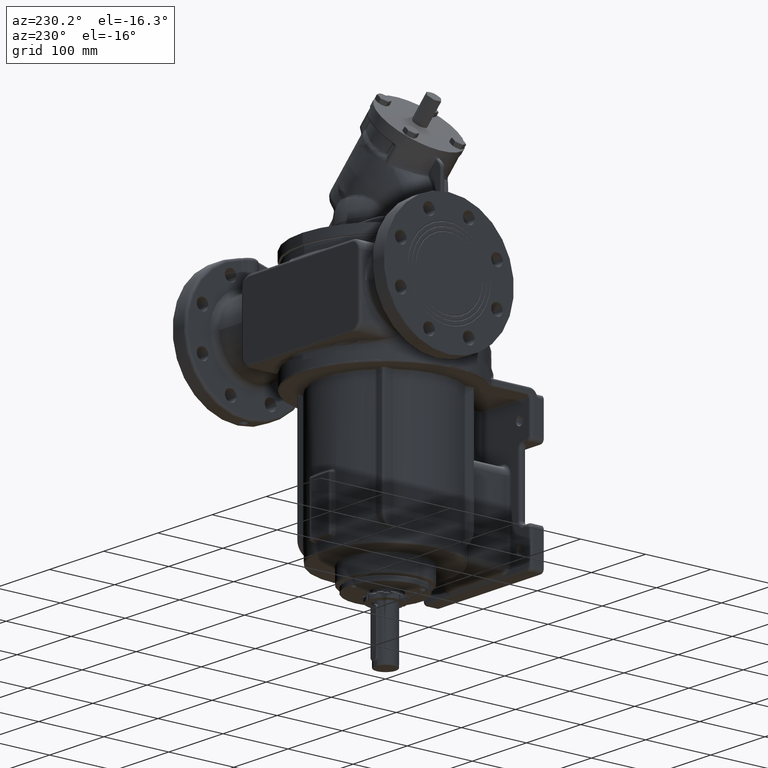
[diagram: clean part render]
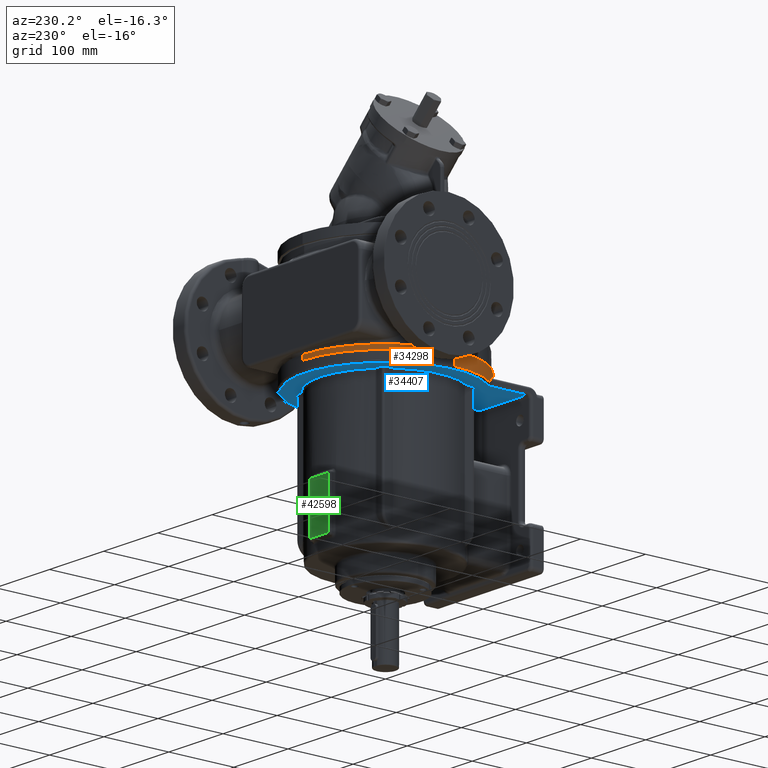
[diagram: same view with three faces highlighted in distinct colors, each labeled with its STEP entity id]
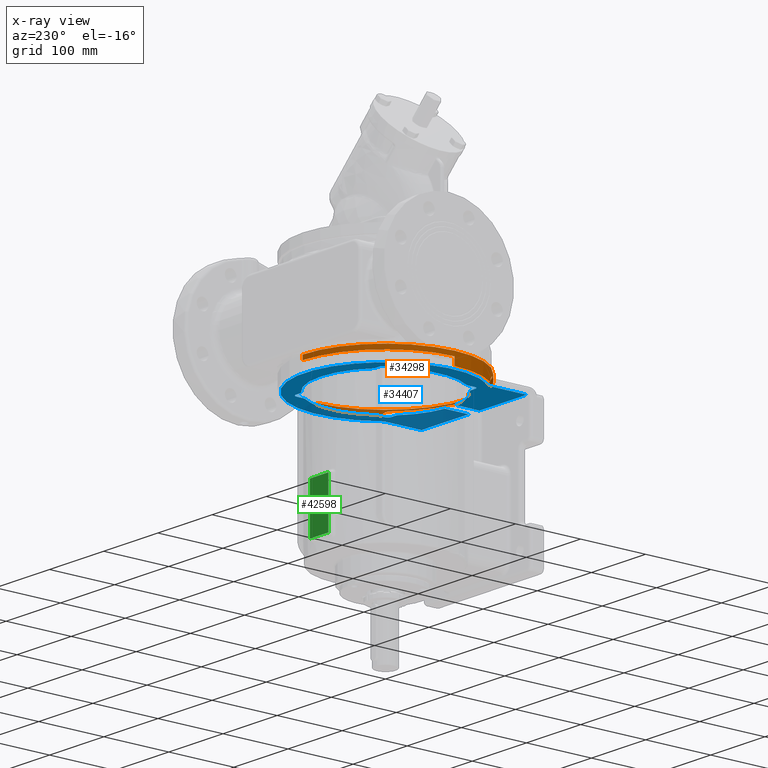
[diagram: x-ray of the same camera — body ghosted, the three highlighted faces saturated]
A machine part, auxiliary view with three faces highlighted in distinct colors.
The next image is the same camera in x-ray (body ghosted, the three faces saturated) — at least one of them is partly hidden behind the body in this view.
Their STEP definitions:

[orange] entity #34298 — the highlighted cylindrical surface (partial cylindrical patch) has radius 127.5 mm, axis along (0, 0, 1).
#7024=CARTESIAN_POINT('',(0.E0,0.E0,8.000000000001E0));
#7025=DIRECTION('',(0.E0,0.E0,1.E0));
#7026=DIRECTION('',(0.E0,1.E0,0.E0));
#7027=AXIS2_PLACEMENT_3D('',#7024,#7025,#7026);
#7029=CARTESIAN_POINT('',(0.E0,0.E0,1.E0));
#7030=DIRECTION('',(0.E0,0.E0,1.E0));
#7031=DIRECTION('',(0.E0,-1.E0,0.E0));
#7032=AXIS2_PLACEMENT_3D('',#7029,#7030,#7031);
#7034=CARTESIAN_POINT('',(0.E0,0.E0,-1.1E1));
#7035=DIRECTION('',(0.E0,0.E0,-1.E0));
#7036=DIRECTION('',(1.E0,0.E0,0.E0));
#7037=AXIS2_PLACEMENT_3D('',#7034,#7035,#7036);
#7039=DIRECTION('',(-6.084626136271E-10,-8.112870375498E-10,1.E0));
#7040=VECTOR('',#7039,4.E0);
#7041=CARTESIAN_POINT('',(1.020000000024E2,-7.649999999675E1,-1.1E1));
#7042=LINE('',#7041,#7040);
#7043=CARTESIAN_POINT('',(1.02E2,-7.65E1,-7.E0));
#7044=CARTESIAN_POINT('',(1.018345745973E2,-7.672056609288E1,
-6.731806660194E0));
#7045=CARTESIAN_POINT('',(1.015162158614E2,-7.714208363280E1,
-6.218281789405E0));
#7046=CARTESIAN_POINT('',(1.010716324088E2,-7.772347736784E1,
-5.522932156862E0));
#7047=CARTESIAN_POINT('',(1.006614189119E2,-7.825384947027E1,
-4.910509691007E0));
#7048=CARTESIAN_POINT('',(1.002860129610E2,-7.873422110484E1,
-4.381025422420E0));
#7049=CARTESIAN_POINT('',(9.994385903463E1,-7.916796889540E1,
-3.927741245680E0));
#7050=CARTESIAN_POINT('',(9.962990181051E1,-7.956262190852E1,
-3.538422422986E0));
#7051=CARTESIAN_POINT('',(9.933744200089E1,-7.992740766391E1,
-3.199652398343E0));
#7052=CARTESIAN_POINT('',(9.906052090810E1,-8.027033266040E1,
-2.900660221844E0));
#7053=CARTESIAN_POINT('',(9.887876925735E1,-8.049384442240E1,
-2.718526947514E0));
#7054=CARTESIAN_POINT('',(9.878934217162E1,-8.060344827176E1,
-2.632315038099E0));
#7056=CARTESIAN_POINT('',(9.878934217162E1,-8.060344827176E1,
-2.632315038099E0));
#7057=CARTESIAN_POINT('',(9.872598002772E1,-8.068110893083E1,
-2.571243436391E0));
#7058=CARTESIAN_POINT('',(9.859497686810E1,-8.084129287736E1,
-2.450305281733E0));
#7059=CARTESIAN_POINT('',(9.838463277204E1,-8.109718163085E1,
-2.273334865420E0));
#7060=CARTESIAN_POINT('',(9.816126084607E1,-8.136743838605E1,
-2.102950596891E0));
#7061=CARTESIAN_POINT('',(9.792541072510E1,-8.165115711206E1,
-1.940511418197E0));
#7062=CARTESIAN_POINT('',(9.767786022629E1,-8.194716188643E1,
-1.787245056191E0));
#7063=CARTESIAN_POINT('',(9.741925652983E1,-8.225444799142E1,
-1.644686564391E0));
#7064=CARTESIAN_POINT('',(9.715042178098E1,-8.257181759643E1,
-1.514052456115E0));
#7065=CARTESIAN_POINT('',(9.687228027144E1,-8.289797472594E1,
-1.396202028190E0));
#7066=CARTESIAN_POINT('',(9.658594074040E1,-8.323143547217E1,
-1.292186763664E0));
#7067=CARTESIAN_POINT('',(9.629263905765E1,-8.357060368716E1,
-1.203018408402E0));
#7068=CARTESIAN_POINT('',(9.599369143884E1,-8.391383129706E1,
-1.129351647198E0));
#7069=CARTESIAN_POINT('',(9.569046675250E1,-8.425945341664E1,
-1.071582121625E0));
#7070=CARTESIAN_POINT('',(9.538444268325E1,-8.460572972302E1,
-1.030205082494E0));
#7071=CARTESIAN_POINT('',(9.507695067956E1,-8.495112894917E1,
-1.005448931150E0));
#7072=CARTESIAN_POINT('',(9.487239627E1,-8.517923409664E1,-1.000002965745E0));
#7073=CARTESIAN_POINT('',(9.477011494366E1,-8.529287961821E1,
-1.000000000002E0));
#7075=CARTESIAN_POINT('',(0.E0,0.E0,-9.999999999999E-1));
#7076=DIRECTION('',(0.E0,0.E0,-1.E0));
#7077=DIRECTION('',(7.432950191571E-1,-6.689637617213E-1,0.E0));
#7078=AXIS2_PLACEMENT_3D('',#7075,#7076,#7077);
#7080=CARTESIAN_POINT('',(-9.477011494345E1,-8.529287961844E1,
-1.000000000002E0));
#7081=CARTESIAN_POINT('',(-9.487238070541E1,-8.517925090908E1,
-1.000003031781E0));
#7082=CARTESIAN_POINT('',(-9.507673036850E1,-8.495137398203E1,
-1.005455188941E0));
#7083=CARTESIAN_POINT('',(-9.538328383182E1,-8.460703300808E1,
-1.030121951447E0));
#7084=CARTESIAN_POINT('',(-9.568808823594E1,-8.426215098945E1,
-1.071248060553E0));
#7085=CARTESIAN_POINT('',(-9.599003650864E1,-8.391800878310E1,
-1.128549629257E0));
#7086=CARTESIAN_POINT('',(-9.628790102262E1,-8.357606011313E1,
-1.201742308978E0));
#7087=CARTESIAN_POINT('',(-9.658053092510E1,-8.323771180746E1,
-1.290469195871E0));
#7088=CARTESIAN_POINT('',(-9.686687042605E1,-8.290429711707E1,
-1.394083332888E0));
#7089=CARTESIAN_POINT('',(-9.714572893118E1,-8.257734111091E1,
-1.511828395056E0));
#7090=CARTESIAN_POINT('',(-9.741557755208E1,-8.225880770023E1,
-1.642809079293E0));
#7091=CARTESIAN_POINT('',(-9.767511664976E1,-8.195043379122E1,
-1.785753256984E0));
#7092=CARTESIAN_POINT('',(-9.792309858695E1,-8.165393035981E1,
-1.938842086258E0));
#7093=CARTESIAN_POINT('',(-9.815893431671E1,-8.137024478121E1,
-2.101001865714E0));
#7094=CARTESIAN_POINT('',(-9.838235896652E1,-8.109994081143E1,
-2.271343811262E0));
#7095=CARTESIAN_POINT('',(-9.859323634845E1,-8.084341656276E1,
-2.448714109522E0));
#7096=CARTESIAN_POINT('',(-9.872531031776E1,-8.068193229851E1,
-2.570605767824E0));
#7097=CARTESIAN_POINT('',(-9.878934288076E1,-8.060344740262E1,
-2.632316047590E0));
#7099=CARTESIAN_POINT('',(-9.878934288076E1,-8.060344740262E1,
-2.632316047590E0));
#7100=CARTESIAN_POINT('',(-9.887907341456E1,-8.049347234898E1,
-2.718817844951E0));
#7101=CARTESIAN_POINT('',(-9.906159344524E1,-8.026901303475E1,
-2.901709231404E0));
#7102=CARTESIAN_POINT('',(-9.934023939728E1,-7.992393626016E1,
-3.202709985745E0));
#7103=CARTESIAN_POINT('',(-9.963447362007E1,-7.955690291615E1,
-3.543886221359E0));
#7104=CARTESIAN_POINT('',(-9.995018319969E1,-7.915998901997E1,
-3.935744966837E0));
#7105=CARTESIAN_POINT('',(-1.002932482655E2,-7.872500893792E1,
-4.390925456379E0));
#7106=CARTESIAN_POINT('',(-1.006700145983E2,-7.824279697977E1,
-4.922941460508E0));
#7107=CARTESIAN_POINT('',(-1.010795249390E2,-7.771319444078E1,
-5.535100483951E0));
#7108=CARTESIAN_POINT('',(-1.015205008586E2,-7.713644868798E1,
-6.225157102948E0));
#7109=CARTESIAN_POINT('',(-1.018361559831E2,-7.671840201277E1,
-6.734274788332E0));
#7110=CARTESIAN_POINT('',(-1.020000269172E2,-7.649996408964E1,
-6.999947423987E0));
#7112=DIRECTION('',(6.728577055917E-6,-8.976621248860E-6,-9.999999999371E-1));
#7113=VECTOR('',#7112,4.000052576265E0);
#7114=CARTESIAN_POINT('',(-1.020000269172E2,-7.649996408964E1,
-6.999947423987E0));
#7115=LINE('',#7114,#7113);
#7116=CARTESIAN_POINT('',(0.E0,0.E0,-1.1E1));
#7117=DIRECTION('',(0.E0,0.E0,-1.E0));
#7118=DIRECTION('',(-8.E-1,-6.E-1,0.E0));
#7119=AXIS2_PLACEMENT_3D('',#7116,#7117,#7118);
#7121=DIRECTION('',(0.E0,4.257314524292E-13,-1.E0));
#7122=VECTOR('',#7121,1.2E1);
#7123=CARTESIAN_POINT('',(1.275E2,2.342138003369E-14,1.E0));
#7124=LINE('',#7123,#7122);
#7125=DIRECTION('',(0.E0,0.E0,-1.E0));
#7126=VECTOR('',#7125,7.E0);
#7127=CARTESIAN_POINT('',(0.E0,-1.275E2,8.E0));
#7128=LINE('',#7127,#7126);
#7134=DIRECTION('',(0.E0,0.E0,-1.E0));
#7135=VECTOR('',#7134,7.E0);
#7136=CARTESIAN_POINT('',(0.E0,1.275E2,8.E0));
#7137=LINE('',#7136,#7135);
#7138=CARTESIAN_POINT('',(0.E0,0.E0,1.E0));
#7139=DIRECTION('',(0.E0,0.E0,1.E0));
#7140=DIRECTION('',(0.E0,1.E0,0.E0));
#7141=AXIS2_PLACEMENT_3D('',#7138,#7139,#7140);
#7143=DIRECTION('',(0.E0,-2.716193617701E-13,-1.E0));
#7144=VECTOR('',#7143,1.2E1);
#7145=CARTESIAN_POINT('',(-1.275E2,-1.561423668913E-14,1.E0));
#7146=LINE('',#7145,#7144);
#9080=CARTESIAN_POINT('',(1.02E2,-7.65E1,-7.E0));
#15477=CARTESIAN_POINT('',(-1.02E2,-7.65E1,-1.1E1));
#15478=CARTESIAN_POINT('',(-1.275E2,-3.699670294698E-14,-1.1E1));
#15479=VERTEX_POINT('',#15477);
#15480=VERTEX_POINT('',#15478);
#15481=CARTESIAN_POINT('',(1.275E2,2.975892721928E-14,-1.1E1));
#15482=VERTEX_POINT('',#15481);
#15483=CARTESIAN_POINT('',(1.02E2,-7.65E1,-1.1E1));
#15484=VERTEX_POINT('',#15483);
#15709=VERTEX_POINT('',#7099);
#15710=VERTEX_POINT('',#7110);
#15712=VERTEX_POINT('',#7080);
#15714=CARTESIAN_POINT('',(9.477011494253E1,-8.529287961946E1,
-9.999999999999E-1));
#15715=VERTEX_POINT('',#15714);
#15718=VERTEX_POINT('',#7056);
#15720=VERTEX_POINT('',#9080);
#16034=CARTESIAN_POINT('',(2.123302534596E-14,1.275E2,8.000000000001E0));
#16035=CARTESIAN_POINT('',(-3.684725203508E-14,-1.275E2,8.000000000001E0));
#16036=VERTEX_POINT('',#16034);
#16037=VERTEX_POINT('',#16035);
#16038=CARTESIAN_POINT('',(-2.342136003369E-14,1.275E2,1.E0));
#16039=CARTESIAN_POINT('',(-1.275E2,-1.561423668913E-14,1.E0));
#16040=VERTEX_POINT('',#16038);
#16041=VERTEX_POINT('',#16039);
#16042=CARTESIAN_POINT('',(0.E0,-1.275E2,1.E0));
#16043=CARTESIAN_POINT('',(1.275E2,2.831069712794E-14,1.E0));
#16044=VERTEX_POINT('',#16042);
#16045=VERTEX_POINT('',#16043);
#34260=CARTESIAN_POINT('',(0.E0,-3.280827774916E-14,-2.669E2));
#34261=DIRECTION('',(0.E0,0.E0,1.E0));
#34262=DIRECTION('',(1.E0,0.E0,0.E0));
#34263=AXIS2_PLACEMENT_3D('',#34260,#34261,#34262);
#34264=CYLINDRICAL_SURFACE('',#34263,1.275E2);
#34266=ORIENTED_EDGE('',*,*,#34265,.F.);
#34268=ORIENTED_EDGE('',*,*,#34267,.F.);
#34270=ORIENTED_EDGE('',*,*,#34269,.F.);
#34271=ORIENTED_EDGE('',*,*,#34248,.T.);
#34273=ORIENTED_EDGE('',*,*,#34272,.T.);
#34275=ORIENTED_EDGE('',*,*,#34274,.T.);
#34277=ORIENTED_EDGE('',*,*,#34276,.T.);
#34279=ORIENTED_EDGE('',*,*,#34278,.T.);
#34281=ORIENTED_EDGE('',*,*,#34280,.T.);
#34283=ORIENTED_EDGE('',*,*,#34282,.T.);
#34285=ORIENTED_EDGE('',*,*,#34284,.T.);
#34287=ORIENTED_EDGE('',*,*,#34286,.T.);
#34289=ORIENTED_EDGE('',*,*,#34288,.T.);
#34291=ORIENTED_EDGE('',*,*,#34290,.T.);
#34293=ORIENTED_EDGE('',*,*,#34292,.T.);
#34295=ORIENTED_EDGE('',*,*,#34294,.T.);
#34296=EDGE_LOOP('',(#34266,#34268,#34270,#34271,#34273,#34275,#34277,#34279,
#34281,#34283,#34285,#34287,#34289,#34291,#34293,#34295));
#34297=FACE_OUTER_BOUND('',#34296,.F.);
#34298=ADVANCED_FACE('',(#34297),#34264,.T.);
#7028=CIRCLE('',#7027,1.275E2);
#7033=CIRCLE('',#7032,1.275E2);
#7038=CIRCLE('',#7037,1.275E2);
#7055=B_SPLINE_CURVE_WITH_KNOTS('',3,(#7043,#7044,#7045,#7046,#7047,#7048,#7049,
#7050,#7051,#7052,#7053,#7054),.UNSPECIFIED.,.F.,.F.,(4,1,1,1,1,1,1,1,1,4),
(0.E0,1.111111111111E-1,2.222222222222E-1,3.333333333333E-1,4.444444444444E-1,
5.555555555556E-1,6.666666666667E-1,7.777777777778E-1,8.888888888889E-1,1.E0),
.UNSPECIFIED.);
#7074=B_SPLINE_CURVE_WITH_KNOTS('',3,(#7056,#7057,#7058,#7059,#7060,#7061,#7062,
#7063,#7064,#7065,#7066,#7067,#7068,#7069,#7070,#7071,#7072,#7073),
.UNSPECIFIED.,.F.,.F.,(4,1,1,1,1,1,1,1,1,1,1,1,1,1,1,4),(0.E0,6.666666666667E-2,
1.333333333333E-1,2.E-1,2.666666666667E-1,3.333333333333E-1,4.E-1,
4.666666666667E-1,5.333333333333E-1,6.E-1,6.666666666667E-1,7.333333333333E-1,
8.E-1,8.666666666667E-1,9.333333333333E-1,1.E0),.UNSPECIFIED.);
#7079=CIRCLE('',#7078,1.275E2);
#7098=B_SPLINE_CURVE_WITH_KNOTS('',3,(#7080,#7081,#7082,#7083,#7084,#7085,#7086,
#7087,#7088,#7089,#7090,#7091,#7092,#7093,#7094,#7095,#7096,#7097),
.UNSPECIFIED.,.F.,.F.,(4,1,1,1,1,1,1,1,1,1,1,1,1,1,1,4),(0.E0,6.666666666667E-2,
1.333333333333E-1,2.E-1,2.666666666667E-1,3.333333333333E-1,4.E-1,
4.666666666667E-1,5.333333333333E-1,6.E-1,6.666666666667E-1,7.333333333333E-1,
8.E-1,8.666666666667E-1,9.333333333333E-1,1.E0),.UNSPECIFIED.);
#7111=B_SPLINE_CURVE_WITH_KNOTS('',3,(#7099,#7100,#7101,#7102,#7103,#7104,#7105,
#7106,#7107,#7108,#7109,#7110),.UNSPECIFIED.,.F.,.F.,(4,1,1,1,1,1,1,1,1,4),
(0.E0,1.111111111111E-1,2.222222222222E-1,3.333333333333E-1,4.444444444444E-1,
5.555555555556E-1,6.666666666667E-1,7.777777777778E-1,8.888888888889E-1,1.E0),
.UNSPECIFIED.);
#7120=CIRCLE('',#7119,1.275E2);
#7142=CIRCLE('',#7141,1.275E2);
#34248=EDGE_CURVE('',#16036,#16037,#7028,.T.);
#34265=EDGE_CURVE('',#16041,#15480,#7146,.T.);
#34267=EDGE_CURVE('',#16040,#16041,#7142,.T.);
#34269=EDGE_CURVE('',#16036,#16040,#7137,.T.);
#34272=EDGE_CURVE('',#16037,#16044,#7128,.T.);
#34274=EDGE_CURVE('',#16044,#16045,#7033,.T.);
#34276=EDGE_CURVE('',#16045,#15482,#7124,.T.);
#34278=EDGE_CURVE('',#15482,#15484,#7038,.T.);
#34280=EDGE_CURVE('',#15484,#15720,#7042,.T.);
#34282=EDGE_CURVE('',#15720,#15718,#7055,.T.);
#34284=EDGE_CURVE('',#15718,#15715,#7074,.T.);
#34286=EDGE_CURVE('',#15715,#15712,#7079,.T.);
#34288=EDGE_CURVE('',#15712,#15709,#7098,.T.);
#34290=EDGE_CURVE('',#15709,#15710,#7111,.T.);
#34292=EDGE_CURVE('',#15710,#15479,#7115,.T.);
#34294=EDGE_CURVE('',#15479,#15480,#7120,.T.);

[blue] entity #34407 — the highlighted planar face has unit normal (0, 0, 1).
#7152=CARTESIAN_POINT('',(0.E0,0.E0,-1.4E1));
#7153=DIRECTION('',(0.E0,0.E0,-1.E0));
#7154=DIRECTION('',(-8.000045648583E-1,-5.999939134740E-1,0.E0));
#7155=AXIS2_PLACEMENT_3D('',#7152,#7153,#7154);
#7162=CARTESIAN_POINT('',(-8.4E1,-5.608029957124E1,-1.4E1));
#7163=DIRECTION('',(0.E0,0.E0,-1.E0));
#7164=DIRECTION('',(8.316831683168E-1,5.552504908044E-1,0.E0));
#7165=AXIS2_PLACEMENT_3D('',#7162,#7163,#7164);
#7167=CARTESIAN_POINT('',(0.E0,0.E0,-1.4E1));
#7168=DIRECTION('',(0.E0,0.E0,1.E0));
#7169=DIRECTION('',(-8.316831683168E-1,5.552504908044E-1,0.E0));
#7170=AXIS2_PLACEMENT_3D('',#7167,#7168,#7169);
#7172=CARTESIAN_POINT('',(-8.4E1,5.608029957124E1,-1.4E1));
#7173=DIRECTION('',(0.E0,0.E0,-1.E0));
#7174=DIRECTION('',(1.E0,0.E0,0.E0));
#7175=AXIS2_PLACEMENT_3D('',#7172,#7173,#7174);
#7177=DIRECTION('',(-6.384350397196E-11,-1.E0,0.E0));
#7178=VECTOR('',#7177,1.141970043857E1);
#7179=CARTESIAN_POINT('',(-8.299999999927E1,6.750000000981E1,-1.4E1));
#7180=LINE('',#7179,#7178);
#7181=CARTESIAN_POINT('',(-7.7E1,6.75E1,-1.4E1));
#7182=DIRECTION('',(0.E0,0.E0,1.E0));
#7183=DIRECTION('',(0.E0,1.E0,0.E0));
#7184=AXIS2_PLACEMENT_3D('',#7181,#7182,#7183);
#7186=DIRECTION('',(-1.E0,-2.553730027518E-10,0.E0));
#7187=VECTOR('',#7186,8.803592487393E0);
#7188=CARTESIAN_POINT('',(-6.819640753002E1,7.35E1,-1.4E1));
#7189=LINE('',#7188,#7187);
#7190=CARTESIAN_POINT('',(-6.819640753002E1,7.45E1,-1.4E1));
#7191=DIRECTION('',(0.E0,0.E0,-1.E0));
#7192=DIRECTION('',(6.752119557427E-1,-7.376237623762E-1,0.E0));
#7193=AXIS2_PLACEMENT_3D('',#7190,#7191,#7192);
#7195=CARTESIAN_POINT('',(0.E0,0.E0,-1.4E1));
#7196=DIRECTION('',(0.E0,0.E0,1.E0));
#7197=DIRECTION('',(6.752119557427E-1,7.376237623762E-1,0.E0));
#7198=AXIS2_PLACEMENT_3D('',#7195,#7196,#7197);
#7200=CARTESIAN_POINT('',(6.819640753002E1,7.45E1,-1.4E1));
#7201=DIRECTION('',(0.E0,0.E0,-1.E0));
#7202=DIRECTION('',(1.421085471520E-14,-1.E0,0.E0));
#7203=AXIS2_PLACEMENT_3D('',#7200,#7201,#7202);
#7205=DIRECTION('',(-1.E0,2.155681768786E-10,0.E0));
#7206=VECTOR('',#7205,8.803592485526E0);
#7207=CARTESIAN_POINT('',(7.700000001554E1,7.349999999810E1,-1.4E1));
#7208=LINE('',#7207,#7206);
#7209=CARTESIAN_POINT('',(7.7E1,6.75E1,-1.4E1));
#7210=DIRECTION('',(0.E0,0.E0,1.E0));
#7211=DIRECTION('',(1.E0,0.E0,0.E0));
#7212=AXIS2_PLACEMENT_3D('',#7209,#7210,#7211);
#7214=DIRECTION('',(-8.003584127642E-11,1.E0,0.E0));
#7215=VECTOR('',#7214,1.141970044029E1);
#7216=CARTESIAN_POINT('',(8.3E1,5.608029957124E1,-1.4E1));
#7217=LINE('',#7216,#7215);
#7218=CARTESIAN_POINT('',(8.4E1,5.608029957124E1,-1.4E1));
#7219=DIRECTION('',(0.E0,0.E0,-1.E0));
#7220=DIRECTION('',(-8.316831683168E-1,-5.552504908044E-1,0.E0));
#7221=AXIS2_PLACEMENT_3D('',#7218,#7219,#7220);
#7223=CARTESIAN_POINT('',(0.E0,0.E0,-1.4E1));
#7224=DIRECTION('',(0.E0,0.E0,1.E0));
#7225=DIRECTION('',(8.316831683168E-1,-5.552504908044E-1,0.E0));
#7226=AXIS2_PLACEMENT_3D('',#7223,#7224,#7225);
#7228=CARTESIAN_POINT('',(8.4E1,-5.608029957124E1,-1.4E1));
#7229=DIRECTION('',(0.E0,0.E0,-1.E0));
#7230=DIRECTION('',(-1.E0,0.E0,0.E0));
#7231=AXIS2_PLACEMENT_3D('',#7228,#7229,#7230);
#7233=DIRECTION('',(6.384350397196E-11,1.E0,0.E0));
#7234=VECTOR('',#7233,1.141970043857E1);
#7235=CARTESIAN_POINT('',(8.299999999927E1,-6.750000000981E1,-1.4E1));
#7236=LINE('',#7235,#7234);
#7237=CARTESIAN_POINT('',(7.7E1,-6.75E1,-1.4E1));
#7238=DIRECTION('',(0.E0,0.E0,1.E0));
#7239=DIRECTION('',(0.E0,-1.E0,0.E0));
#7240=AXIS2_PLACEMENT_3D('',#7237,#7238,#7239);
#7242=DIRECTION('',(1.E0,2.553746169627E-10,0.E0));
#7243=VECTOR('',#7242,8.803592487393E0);
#7244=CARTESIAN_POINT('',(6.819640753002E1,-7.35E1,-1.4E1));
#7245=LINE('',#7244,#7243);
#7246=CARTESIAN_POINT('',(6.819640753002E1,-7.45E1,-1.4E1));
#7247=DIRECTION('',(0.E0,0.E0,-1.E0));
#7248=DIRECTION('',(-6.752119557428E-1,7.376237623762E-1,0.E0));
#7249=AXIS2_PLACEMENT_3D('',#7246,#7247,#7248);
#7251=CARTESIAN_POINT('',(0.E0,0.E0,-1.4E1));
#7252=DIRECTION('',(0.E0,0.E0,1.E0));
#7253=DIRECTION('',(1.E-1,-9.949874371066E-1,0.E0));
#7254=AXIS2_PLACEMENT_3D('',#7251,#7252,#7253);
#7256=DIRECTION('',(6.550773955826E-10,-9.999999999493E-1,-1.006527601433E-5));
#7257=VECTOR('',#7256,3.650125737493E1);
#7258=CARTESIAN_POINT('',(9.999999981681E0,-9.949874371250E1,-1.4E1));
#7259=LINE('',#7258,#7257);
#7260=DIRECTION('',(1.555305002134E-11,1.E0,2.748812932214E-10));
#7261=VECTOR('',#7260,5.349999999985E1);
#7262=CARTESIAN_POINT('',(9.7E1,-1.36E2,-1.400000001471E1));
#7263=LINE('',#7262,#7261);
#7264=CARTESIAN_POINT('',(1.1E2,-8.25E1,-1.4E1));
#7265=DIRECTION('',(0.E0,0.E0,1.E0));
#7266=DIRECTION('',(-7.997741628416E-1,6.003009982092E-1,0.E0));
#7267=AXIS2_PLACEMENT_3D('',#7264,#7265,#7266);
#7269=CARTESIAN_POINT('',(-1.1E2,-8.25E1,-1.4E1));
#7270=DIRECTION('',(0.E0,0.E0,1.E0));
#7271=DIRECTION('',(1.E0,0.E0,0.E0));
#7272=AXIS2_PLACEMENT_3D('',#7269,#7270,#7271);
#7274=DIRECTION('',(1.485711657546E-11,-1.E0,-2.738409457661E-10));
#7275=VECTOR('',#7274,5.349999999988E1);
#7276=CARTESIAN_POINT('',(-9.700000000079E1,-8.250000000012E1,-1.4E1));
#7277=LINE('',#7276,#7275);
#7278=DIRECTION('',(6.553009654939E-10,9.999999999493E-1,1.006743690067E-5));
#7279=VECTOR('',#7278,3.650125737562E1);
#7280=CARTESIAN_POINT('',(-1.000000000560E1,-1.360000010863E2,
-1.400036747411E1));
#7281=LINE('',#7280,#7279);
#7282=CARTESIAN_POINT('',(0.E0,0.E0,-1.4E1));
#7283=DIRECTION('',(0.E0,0.E0,1.E0));
#7284=DIRECTION('',(-6.752119557427E-1,-7.376237623762E-1,0.E0));
#7285=AXIS2_PLACEMENT_3D('',#7282,#7283,#7284);
#7287=CARTESIAN_POINT('',(-6.819640753002E1,-7.45E1,-1.4E1));
#7288=DIRECTION('',(0.E0,0.E0,-1.E0));
#7289=DIRECTION('',(0.E0,1.E0,0.E0));
#7290=AXIS2_PLACEMENT_3D('',#7287,#7288,#7289);
#7292=DIRECTION('',(1.E0,-2.155681768786E-10,0.E0));
#7293=VECTOR('',#7292,8.803592485526E0);
#7294=CARTESIAN_POINT('',(-7.700000001554E1,-7.349999999810E1,-1.4E1));
#7295=LINE('',#7294,#7293);
#7296=CARTESIAN_POINT('',(-7.7E1,-6.75E1,-1.4E1));
#7297=DIRECTION('',(0.E0,0.E0,1.E0));
#7298=DIRECTION('',(-1.E0,0.E0,0.E0));
#7299=AXIS2_PLACEMENT_3D('',#7296,#7297,#7298);
#7301=DIRECTION('',(8.003584127642E-11,-1.E0,0.E0));
#7302=VECTOR('',#7301,1.141970044029E1);
#7303=CARTESIAN_POINT('',(-8.3E1,-5.608029957124E1,-1.4E1));
#7304=LINE('',#7303,#7302);
#8946=DIRECTION('',(-9.999999999911E-1,1.248586864620E-8,4.223671896041E-6));
#8947=VECTOR('',#8946,8.699999999518E1);
#8948=CARTESIAN_POINT('',(-1.000000000560E1,-1.360000010863E2,
-1.400036747411E1));
#8949=LINE('',#8948,#8947);
#11251=DIRECTION('',(-9.999999999911E-1,-1.247803503505E-8,-4.222764646246E-6));
#11252=VECTOR('',#11251,8.699999999518E1);
#11253=CARTESIAN_POINT('',(9.7E1,-1.36E2,-1.400000001471E1));
#11254=LINE('',#11253,#11252);
#15485=CARTESIAN_POINT('',(-9.960056832486E1,-7.469924222752E1,-1.4E1));
#15486=CARTESIAN_POINT('',(9.960293520119E1,-7.469608623822E1,-1.4E1));
#15487=VERTEX_POINT('',#15485);
#15488=VERTEX_POINT('',#15486);
#15545=CARTESIAN_POINT('',(9.7E1,-8.25E1,-1.4E1));
#15546=VERTEX_POINT('',#15545);
#15547=CARTESIAN_POINT('',(-9.7E1,-8.25E1,-1.4E1));
#15548=VERTEX_POINT('',#15547);
#15557=CARTESIAN_POINT('',(-8.316831683168E1,-5.552504908044E1,-1.4E1));
#15558=CARTESIAN_POINT('',(-8.3E1,-5.608029957124E1,-1.4E1));
#15559=VERTEX_POINT('',#15557);
#15560=VERTEX_POINT('',#15558);
#15563=CARTESIAN_POINT('',(-8.299999999909E1,-6.750000001152E1,-1.4E1));
#15564=VERTEX_POINT('',#15563);
#15567=CARTESIAN_POINT('',(-7.7E1,-7.35E1,-1.4E1));
#15568=VERTEX_POINT('',#15567);
#15571=CARTESIAN_POINT('',(-6.819640753002E1,-7.35E1,-1.4E1));
#15572=VERTEX_POINT('',#15571);
#15575=CARTESIAN_POINT('',(-6.752119557427E1,-7.376237623762E1,-1.4E1));
#15576=VERTEX_POINT('',#15575);
#15579=CARTESIAN_POINT('',(-1.E1,-9.949874371066E1,-1.4E1));
#15580=VERTEX_POINT('',#15579);
#15623=CARTESIAN_POINT('',(1.E1,-9.949874371066E1,-1.4E1));
#15624=VERTEX_POINT('',#15623);
#15627=CARTESIAN_POINT('',(6.752119557427E1,-7.376237623762E1,-1.4E1));
#15628=VERTEX_POINT('',#15627);
#15631=CARTESIAN_POINT('',(6.819640753002E1,-7.35E1,-1.4E1));
#15632=VERTEX_POINT('',#15631);
#15635=CARTESIAN_POINT('',(7.700000001741E1,-7.349999999775E1,-1.4E1));
#15636=VERTEX_POINT('',#15635);
#15639=CARTESIAN_POINT('',(8.3E1,-6.75E1,-1.4E1));
#15640=VERTEX_POINT('',#15639);
#15643=CARTESIAN_POINT('',(8.3E1,-5.608029957124E1,-1.4E1));
#15644=VERTEX_POINT('',#15643);
#15647=CARTESIAN_POINT('',(8.316831683168E1,-5.552504908044E1,-1.4E1));
#15648=VERTEX_POINT('',#15647);
#15651=CARTESIAN_POINT('',(8.316831683168E1,5.552504908044E1,-1.4E1));
#15652=VERTEX_POINT('',#15651);
#15655=CARTESIAN_POINT('',(8.3E1,5.608029957124E1,-1.4E1));
#15656=VERTEX_POINT('',#15655);
#15659=CARTESIAN_POINT('',(8.299999999909E1,6.750000001152E1,-1.4E1));
#15660=VERTEX_POINT('',#15659);
#15663=CARTESIAN_POINT('',(7.7E1,7.35E1,-1.4E1));
#15664=VERTEX_POINT('',#15663);
#15667=CARTESIAN_POINT('',(6.819640753002E1,7.35E1,-1.4E1));
#15668=VERTEX_POINT('',#15667);
#15671=CARTESIAN_POINT('',(6.752119557427E1,7.376237623762E1,-1.4E1));
#15672=VERTEX_POINT('',#15671);
#15675=CARTESIAN_POINT('',(-6.752119557427E1,7.376237623762E1,-1.4E1));
#15676=VERTEX_POINT('',#15675);
#15679=CARTESIAN_POINT('',(-6.819640753002E1,7.35E1,-1.4E1));
#15680=VERTEX_POINT('',#15679);
#15683=CARTESIAN_POINT('',(-7.700000001741E1,7.349999999775E1,-1.4E1));
#15684=VERTEX_POINT('',#15683);
#15687=CARTESIAN_POINT('',(-8.3E1,6.75E1,-1.4E1));
#15688=VERTEX_POINT('',#15687);
#15691=CARTESIAN_POINT('',(-8.3E1,5.608029957124E1,-1.4E1));
#15692=VERTEX_POINT('',#15691);
#15695=CARTESIAN_POINT('',(-8.316831683168E1,5.552504908044E1,-1.4E1));
#15696=VERTEX_POINT('',#15695);
#15833=CARTESIAN_POINT('',(1.000000000559E1,-1.360000010856E2,
-1.400036739523E1));
#15834=VERTEX_POINT('',#15833);
#15837=CARTESIAN_POINT('',(-1.000000000560E1,-1.360000010863E2,
-1.400036747411E1));
#15838=VERTEX_POINT('',#15837);
#15911=CARTESIAN_POINT('',(9.7E1,-1.359999997726E2,-1.400000005882E1));
#15913=VERTEX_POINT('',#15911);
#15915=CARTESIAN_POINT('',(-9.7E1,-1.359999997813E2,-1.400000005860E1));
#15917=VERTEX_POINT('',#15915);
#34333=CARTESIAN_POINT('',(0.E0,0.E0,-1.4E1));
#34334=DIRECTION('',(0.E0,0.E0,1.E0));
#34335=DIRECTION('',(1.E0,0.E0,0.E0));
#34336=AXIS2_PLACEMENT_3D('',#34333,#34334,#34335);
#34337=PLANE('',#34336);
#34339=ORIENTED_EDGE('',*,*,#34338,.F.);
#34341=ORIENTED_EDGE('',*,*,#34340,.F.);
#34343=ORIENTED_EDGE('',*,*,#34342,.F.);
#34345=ORIENTED_EDGE('',*,*,#34344,.F.);
#34347=ORIENTED_EDGE('',*,*,#34346,.F.);
#34349=ORIENTED_EDGE('',*,*,#34348,.F.);
#34351=ORIENTED_EDGE('',*,*,#34350,.F.);
#34353=ORIENTED_EDGE('',*,*,#34352,.F.);
#34355=ORIENTED_EDGE('',*,*,#34354,.F.);
#34357=ORIENTED_EDGE('',*,*,#34356,.F.);
#34359=ORIENTED_EDGE('',*,*,#34358,.F.);
#34361=ORIENTED_EDGE('',*,*,#34360,.F.);
#34363=ORIENTED_EDGE('',*,*,#34362,.F.);
#34365=ORIENTED_EDGE('',*,*,#34364,.F.);
#34367=ORIENTED_EDGE('',*,*,#34366,.F.);
#34369=ORIENTED_EDGE('',*,*,#34368,.F.);
#34371=ORIENTED_EDGE('',*,*,#34370,.F.);
#34373=ORIENTED_EDGE('',*,*,#34372,.F.);
#34375=ORIENTED_EDGE('',*,*,#34374,.F.);
#34377=ORIENTED_EDGE('',*,*,#34376,.F.);
#34379=ORIENTED_EDGE('',*,*,#34378,.T.);
#34381=ORIENTED_EDGE('',*,*,#34380,.F.);
#34383=ORIENTED_EDGE('',*,*,#34382,.T.);
#34385=ORIENTED_EDGE('',*,*,#34384,.F.);
#34386=ORIENTED_EDGE('',*,*,#34321,.F.);
#34388=ORIENTED_EDGE('',*,*,#34387,.F.);
#34390=ORIENTED_EDGE('',*,*,#34389,.T.);
#34392=ORIENTED_EDGE('',*,*,#34391,.F.);
#34394=ORIENTED_EDGE('',*,*,#34393,.T.);
#34396=ORIENTED_EDGE('',*,*,#34395,.F.);
#34398=ORIENTED_EDGE('',*,*,#34397,.F.);
#34400=ORIENTED_EDGE('',*,*,#34399,.F.);
#34402=ORIENTED_EDGE('',*,*,#34401,.F.);
#34404=ORIENTED_EDGE('',*,*,#34403,.F.);
#34405=EDGE_LOOP('',(#34339,#34341,#34343,#34345,#34347,#34349,#34351,#34353,
#34355,#34357,#34359,#34361,#34363,#34365,#34367,#34369,#34371,#34373,#34375,
#34377,#34379,#34381,#34383,#34385,#34386,#34388,#34390,#34392,#34394,#34396,
#34398,#34400,#34402,#34404));
#34406=FACE_OUTER_BOUND('',#34405,.F.);
#34407=ADVANCED_FACE('',(#34406),#34337,.F.);
#7156=CIRCLE('',#7155,1.245E2);
#7166=CIRCLE('',#7165,1.E0);
#7171=CIRCLE('',#7170,1.E2);
#7176=CIRCLE('',#7175,1.E0);
#7185=CIRCLE('',#7184,6.E0);
#7194=CIRCLE('',#7193,1.E0);
#7199=CIRCLE('',#7198,1.E2);
#7204=CIRCLE('',#7203,1.E0);
#7213=CIRCLE('',#7212,6.E0);
#7222=CIRCLE('',#7221,1.E0);
#7227=CIRCLE('',#7226,1.E2);
#7232=CIRCLE('',#7231,1.E0);
#7241=CIRCLE('',#7240,6.E0);
#7250=CIRCLE('',#7249,1.E0);
#7255=CIRCLE('',#7254,1.E2);
#7268=CIRCLE('',#7267,1.3E1);
#7273=CIRCLE('',#7272,1.3E1);
#7286=CIRCLE('',#7285,1.E2);
#7291=CIRCLE('',#7290,1.E0);
#7300=CIRCLE('',#7299,6.E0);
#34321=EDGE_CURVE('',#15487,#15488,#7156,.T.);
#34338=EDGE_CURVE('',#15559,#15560,#7166,.T.);
#34340=EDGE_CURVE('',#15696,#15559,#7171,.T.);
#34342=EDGE_CURVE('',#15692,#15696,#7176,.T.);
#34344=EDGE_CURVE('',#15688,#15692,#7180,.T.);
#34346=EDGE_CURVE('',#15684,#15688,#7185,.T.);
#34348=EDGE_CURVE('',#15680,#15684,#7189,.T.);
#34350=EDGE_CURVE('',#15676,#15680,#7194,.T.);
#34352=EDGE_CURVE('',#15672,#15676,#7199,.T.);
#34354=EDGE_CURVE('',#15668,#15672,#7204,.T.);
#34356=EDGE_CURVE('',#15664,#15668,#7208,.T.);
#34358=EDGE_CURVE('',#15660,#15664,#7213,.T.);
#34360=EDGE_CURVE('',#15656,#15660,#7217,.T.);
#34362=EDGE_CURVE('',#15652,#15656,#7222,.T.);
#34364=EDGE_CURVE('',#15648,#15652,#7227,.T.);
#34366=EDGE_CURVE('',#15644,#15648,#7232,.T.);
#34368=EDGE_CURVE('',#15640,#15644,#7236,.T.);
#34370=EDGE_CURVE('',#15636,#15640,#7241,.T.);
#34372=EDGE_CURVE('',#15632,#15636,#7245,.T.);
#34374=EDGE_CURVE('',#15628,#15632,#7250,.T.);
#34376=EDGE_CURVE('',#15624,#15628,#7255,.T.);
#34378=EDGE_CURVE('',#15624,#15834,#7259,.T.);
#34380=EDGE_CURVE('',#15913,#15834,#11254,.T.);
#34382=EDGE_CURVE('',#15913,#15546,#7263,.T.);
#34384=EDGE_CURVE('',#15488,#15546,#7268,.T.);
#34387=EDGE_CURVE('',#15548,#15487,#7273,.T.);
#34389=EDGE_CURVE('',#15548,#15917,#7277,.T.);
#34391=EDGE_CURVE('',#15838,#15917,#8949,.T.);
#34393=EDGE_CURVE('',#15838,#15580,#7281,.T.);
#34395=EDGE_CURVE('',#15576,#15580,#7286,.T.);
#34397=EDGE_CURVE('',#15572,#15576,#7291,.T.);
#34399=EDGE_CURVE('',#15568,#15572,#7295,.T.);
#34401=EDGE_CURVE('',#15564,#15568,#7300,.T.);
#34403=EDGE_CURVE('',#15560,#15564,#7304,.T.);

[green] entity #42598 — the highlighted planar face has unit normal (0, -1, 0).
#14318=DIRECTION('',(1.E0,0.E0,0.E0));
#14319=VECTOR('',#14318,3.4E1);
#14320=CARTESIAN_POINT('',(-1.7E1,1.02E2,-1.36E2));
#14321=LINE('',#14320,#14319);
#14322=DIRECTION('',(0.E0,0.E0,1.E0));
#14323=VECTOR('',#14322,7.4E1);
#14324=CARTESIAN_POINT('',(-1.7E1,1.02E2,-2.1E2));
#14325=LINE('',#14324,#14323);
#14326=DIRECTION('',(-1.E0,0.E0,0.E0));
#14327=VECTOR('',#14326,3.4E1);
#14328=CARTESIAN_POINT('',(1.7E1,1.02E2,-2.1E2));
#14329=LINE('',#14328,#14327);
#14330=DIRECTION('',(0.E0,0.E0,-1.E0));
#14331=VECTOR('',#14330,7.4E1);
#14332=CARTESIAN_POINT('',(1.7E1,1.02E2,-1.36E2));
#14333=LINE('',#14332,#14331);
#15924=CARTESIAN_POINT('',(-1.7E1,1.02E2,-1.36E2));
#15925=CARTESIAN_POINT('',(1.7E1,1.02E2,-1.36E2));
#15926=VERTEX_POINT('',#15924);
#15927=VERTEX_POINT('',#15925);
#15932=CARTESIAN_POINT('',(1.7E1,1.02E2,-2.1E2));
#15933=VERTEX_POINT('',#15932);
#15938=CARTESIAN_POINT('',(-1.7E1,1.02E2,-2.1E2));
#15939=VERTEX_POINT('',#15938);
#42586=CARTESIAN_POINT('',(0.E0,1.02E2,1.E0));
#42587=DIRECTION('',(0.E0,-1.E0,0.E0));
#42588=DIRECTION('',(1.E0,0.E0,0.E0));
#42589=AXIS2_PLACEMENT_3D('',#42586,#42587,#42588);
#42590=PLANE('',#42589);
#42591=ORIENTED_EDGE('',*,*,#42552,.F.);
#42592=ORIENTED_EDGE('',*,*,#42577,.F.);
#42593=ORIENTED_EDGE('',*,*,#42469,.F.);
#42595=ORIENTED_EDGE('',*,*,#42594,.F.);
#42596=EDGE_LOOP('',(#42591,#42592,#42593,#42595));
#42597=FACE_OUTER_BOUND('',#42596,.F.);
#42598=ADVANCED_FACE('',(#42597),#42590,.F.);
#42469=EDGE_CURVE('',#15933,#15939,#14329,.T.);
#42552=EDGE_CURVE('',#15926,#15927,#14321,.T.);
#42577=EDGE_CURVE('',#15939,#15926,#14325,.T.);
#42594=EDGE_CURVE('',#15927,#15933,#14333,.T.);